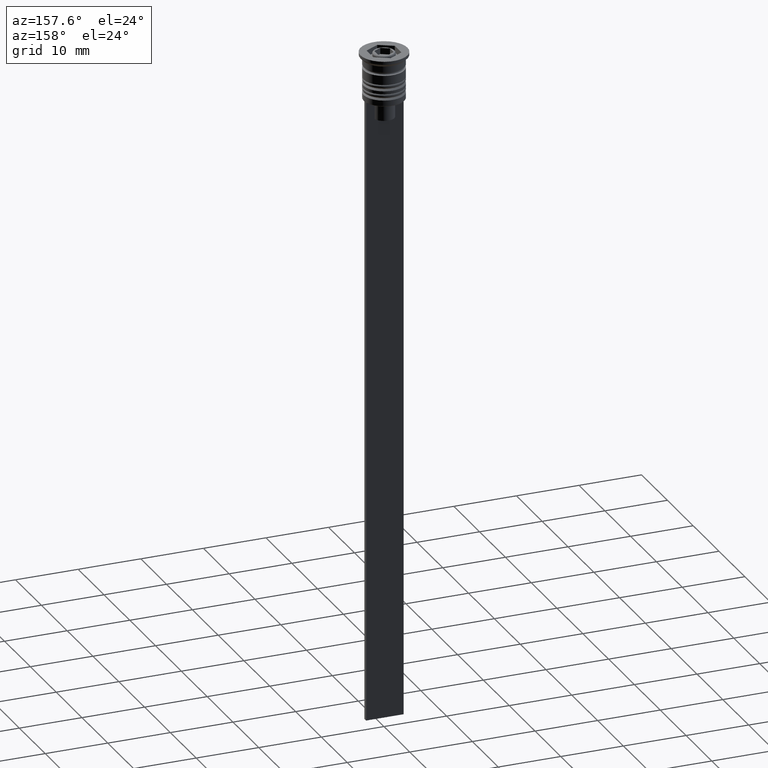
[diagram: clean part render]
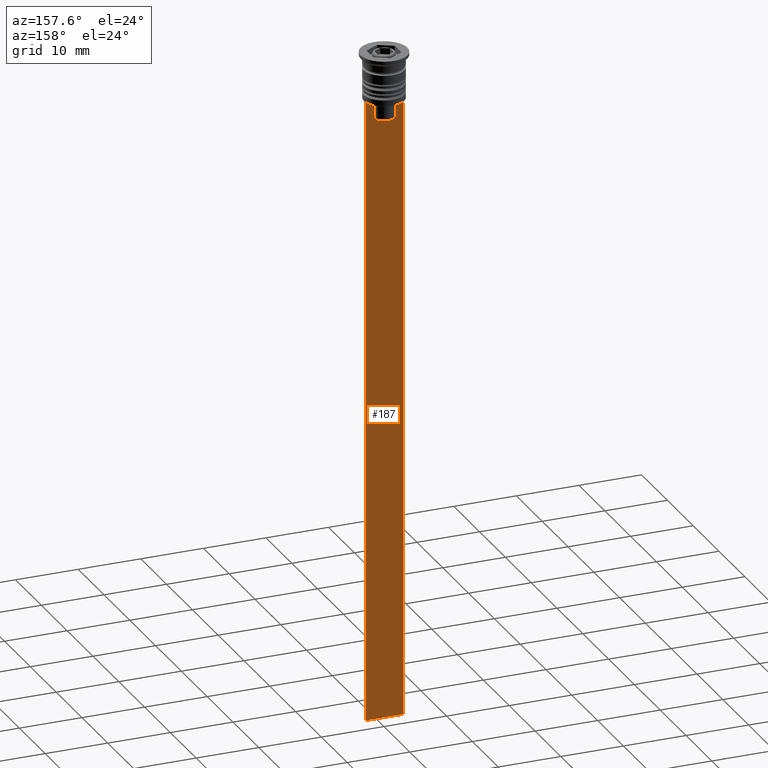
[diagram: same view with one face highlighted and labeled with its STEP entity id]
A machine part, auxiliary view. The second image highlights one B-rep face of the part: STEP entity #187.
In plain terms, the highlighted planar face has unit normal (0, -1, -0).
Its self-contained STEP definition (entity closure, byte-faithful):
#7 = VERTEX_POINT ( 'NONE', #329 ) ;
#31 = VERTEX_POINT ( 'NONE', #1694 ) ;
#101 = DIRECTION ( 'NONE',  ( 0.000000000000000000, 0.000000000000000000, -1.000000000000000000 ) ) ;
#125 = DIRECTION ( 'NONE',  ( 1.000000000000000000, 0.000000000000000000, 0.000000000000000000 ) ) ;
#169 = ORIENTED_EDGE ( 'NONE', *, *, #1607, .F. ) ;
#187 = ADVANCED_FACE ( 'NONE', ( #340 ), #1692, .F. ) ;
#239 = CARTESIAN_POINT ( 'NONE',  ( 2.121320343559647270, 0.3500000000000000333, -7.500000000000000000 ) ) ;
#253 = LINE ( 'NONE', #432, #390 ) ;
#313 = ORIENTED_EDGE ( 'NONE', *, *, #1707, .T. ) ;
#329 = CARTESIAN_POINT ( 'NONE',  ( 2.999999999999995559, 0.3500000000000000333, -107.5000000000000000 ) ) ;
#340 = FACE_OUTER_BOUND ( 'NONE', #624, .T. ) ;
#369 = CARTESIAN_POINT ( 'NONE',  ( 1.782523989086206795, 0.3500000000000000333, -7.833797837268088315 ) ) ;
#390 = VECTOR ( 'NONE', #759, 1000.000000000000000 ) ;
#394 = LINE ( 'NONE', #1610, #530 ) ;
#402 = ORIENTED_EDGE ( 'NONE', *, *, #499, .T. ) ;
#416 = DIRECTION ( 'NONE',  ( 1.000000000000000000, 0.000000000000000000, 0.000000000000000000 ) ) ;
#432 = CARTESIAN_POINT ( 'NONE',  ( -3.000000000000004441, 0.3500000000000000333, -1.459304675784417915 ) ) ;
#446 = EDGE_CURVE ( 'NONE', #31, #455, #1115, .T. ) ;
#455 = VERTEX_POINT ( 'NONE', #1790 ) ;
#499 = EDGE_CURVE ( 'NONE', #1172, #7, #1952, .T. ) ;
#500 = VERTEX_POINT ( 'NONE', #807 ) ;
#530 = VECTOR ( 'NONE', #101, 1000.000000000000000 ) ;
#537 = CARTESIAN_POINT ( 'NONE',  ( 2.121320343559647270, 0.3500000000000000333, -7.500000000000000000 ) ) ;
#548 = CARTESIAN_POINT ( 'NONE',  ( 1.952040775369266346, 0.3500000000000000333, -7.667021484535463394 ) ) ;
#570 = AXIS2_PLACEMENT_3D ( 'NONE', #674, #1369, #2053 ) ;
#574 = CARTESIAN_POINT ( 'NONE',  ( -1.952043732028445167, 0.3500000000000000333, -7.667018567316270961 ) ) ;
#619 = CARTESIAN_POINT ( 'NONE',  ( 2.999999999999995559, 0.3500000000000000333, -1.459304675784417915 ) ) ;
#624 = EDGE_LOOP ( 'NONE', ( #872, #670, #1930, #313, #763, #1573, #1377, #402, #1258, #169 ) ) ;
#670 = ORIENTED_EDGE ( 'NONE', *, *, #1602, .T. ) ;
#674 = CARTESIAN_POINT ( 'NONE',  ( 2.999999999999995559, 0.3500000000000000333, -1.459304675784417915 ) ) ;
#684 = VERTEX_POINT ( 'NONE', #1038 ) ;
#749 = VECTOR ( 'NONE', #416, 1000.000000000000000 ) ;
#759 = DIRECTION ( 'NONE',  ( 0.000000000000000000, 0.000000000000000000, -1.000000000000000000 ) ) ;
#763 = ORIENTED_EDGE ( 'NONE', *, *, #446, .T. ) ;
#775 = EDGE_CURVE ( 'NONE', #1281, #1172, #1845, .T. ) ;
#779 = EDGE_CURVE ( 'NONE', #1010, #500, #394, .T. ) ;
#792 = DIRECTION ( 'NONE',  ( 0.000000000000000000, 0.000000000000000000, -1.000000000000000000 ) ) ;
#807 = CARTESIAN_POINT ( 'NONE',  ( -1.612451549659713601, 0.3500000000000000333, -10.49999999999999822 ) ) ;
#824 = LINE ( 'NONE', #969, #1803 ) ;
#872 = ORIENTED_EDGE ( 'NONE', *, *, #1854, .T. ) ;
#935 = CARTESIAN_POINT ( 'NONE',  ( 1.612451549659713601, 0.3500000000000000333, 0.000000000000000000 ) ) ;
#962 = CARTESIAN_POINT ( 'NONE',  ( -2.121320343559647270, 0.3500000000000000333, -7.500000000000000000 ) ) ;
#969 = CARTESIAN_POINT ( 'NONE',  ( 2.999999999999995559, 0.3500000000000000333, -107.5000000000000000 ) ) ;
#1010 = VERTEX_POINT ( 'NONE', #1645 ) ;
#1038 = CARTESIAN_POINT ( 'NONE',  ( -3.000000000000004441, 0.3499999999999999223, -7.500000000000000000 ) ) ;
#1111 = CARTESIAN_POINT ( 'NONE',  ( 2.999999999999995559, 0.3500000000000000333, -7.500000000000000000 ) ) ;
#1115 = LINE ( 'NONE', #935, #1270 ) ;
#1172 = VERTEX_POINT ( 'NONE', #1111 ) ;
#1258 = ORIENTED_EDGE ( 'NONE', *, *, #1817, .T. ) ;
#1264 = CARTESIAN_POINT ( 'NONE',  ( 2.999999999999995559, 0.3500000000000000333, -7.500000000000000000 ) ) ;
#1270 = VECTOR ( 'NONE', #2109, 1000.000000000000000 ) ;
#1281 = VERTEX_POINT ( 'NONE', #239 ) ;
#1349 = VERTEX_POINT ( 'NONE', #1640 ) ;
#1369 = DIRECTION ( 'NONE',  ( 0.000000000000000000, -1.000000000000000000, -0.000000000000000000 ) ) ;
#1377 = ORIENTED_EDGE ( 'NONE', *, *, #775, .T. ) ;
#1459 = CARTESIAN_POINT ( 'NONE',  ( 2.999999999999995559, 0.3500000000000000333, -7.500000000000000000 ) ) ;
#1543 = EDGE_CURVE ( 'NONE', #455, #1281, #1961, .T. ) ;
#1562 = VECTOR ( 'NONE', #125, 1000.000000000000000 ) ;
#1573 = ORIENTED_EDGE ( 'NONE', *, *, #1543, .T. ) ;
#1587 = DIRECTION ( 'NONE',  ( 1.000000000000000000, 0.000000000000000000, 0.000000000000000000 ) ) ;
#1602 = EDGE_CURVE ( 'NONE', #1825, #1010, #1663, .T. ) ;
#1607 = EDGE_CURVE ( 'NONE', #684, #1349, #253, .T. ) ;
#1610 = CARTESIAN_POINT ( 'NONE',  ( -1.612451549659713601, 0.3500000000000000333, 0.000000000000000000 ) ) ;
#1619 = LINE ( 'NONE', #2130, #1920 ) ;
#1640 = CARTESIAN_POINT ( 'NONE',  ( -3.000000000000004441, 0.3500000000000000333, -107.5000000000000000 ) ) ;
#1644 = DIRECTION ( 'NONE',  ( -1.000000000000000000, 0.000000000000000000, 0.000000000000000000 ) ) ;
#1645 = CARTESIAN_POINT ( 'NONE',  ( -1.612451549659713601, 0.3500000000000000333, -8.000000000000000000 ) ) ;
#1663 = B_SPLINE_CURVE_WITH_KNOTS ( 'NONE', 3,
 ( #1791, #574, #2103, #2111 ),
 .UNSPECIFIED., .F., .F.,
 ( 4, 4 ),
 ( 0.003684653461239336628, 0.004398058763641255961 ),
 .UNSPECIFIED. ) ;
#1692 = PLANE ( 'NONE',  #570 ) ;
#1694 = CARTESIAN_POINT ( 'NONE',  ( 1.612451549659713601, 0.3500000000000000333, -10.49999999999999822 ) ) ;
#1707 = EDGE_CURVE ( 'NONE', #500, #31, #1619, .T. ) ;
#1790 = CARTESIAN_POINT ( 'NONE',  ( 1.612451549659713601, 0.3500000000000000333, -8.000000000000000000 ) ) ;
#1791 = CARTESIAN_POINT ( 'NONE',  ( -2.121320343559647270, 0.3500000000000000333, -7.500000000000000000 ) ) ;
#1803 = VECTOR ( 'NONE', #1644, 1000.000000000000000 ) ;
#1817 = EDGE_CURVE ( 'NONE', #7, #1349, #824, .T. ) ;
#1825 = VERTEX_POINT ( 'NONE', #962 ) ;
#1845 = LINE ( 'NONE', #1264, #749 ) ;
#1854 = EDGE_CURVE ( 'NONE', #684, #1825, #2145, .T. ) ;
#1920 = VECTOR ( 'NONE', #1587, 1000.000000000000000 ) ;
#1930 = ORIENTED_EDGE ( 'NONE', *, *, #779, .T. ) ;
#1952 = LINE ( 'NONE', #619, #2052 ) ;
#1961 = B_SPLINE_CURVE_WITH_KNOTS ( 'NONE', 3,
 ( #2067, #369, #548, #537 ),
 .UNSPECIFIED., .F., .F.,
 ( 4, 4 ),
 ( 0.008600796474521226961, 0.009317962624906524910 ),
 .UNSPECIFIED. ) ;
#2052 = VECTOR ( 'NONE', #792, 1000.000000000000000 ) ;
#2053 = DIRECTION ( 'NONE',  ( 0.000000000000000000, 0.000000000000000000, -1.000000000000000000 ) ) ;
#2067 = CARTESIAN_POINT ( 'NONE',  ( 1.612451549659713601, 0.3500000000000000333, -8.000000000000000000 ) ) ;
#2103 = CARTESIAN_POINT ( 'NONE',  ( -1.782527878033863589, 0.3500000000000000333, -7.833794036819862860 ) ) ;
#2109 = DIRECTION ( 'NONE',  ( -0.000000000000000000, -0.000000000000000000, 1.000000000000000000 ) ) ;
#2111 = CARTESIAN_POINT ( 'NONE',  ( -1.612451549659713601, 0.3500000000000000333, -8.000000000000000000 ) ) ;
#2130 = CARTESIAN_POINT ( 'NONE',  ( 0.000000000000000000, 0.3500000000000000333, -10.49999999999999822 ) ) ;
#2145 = LINE ( 'NONE', #1459, #1562 ) ;